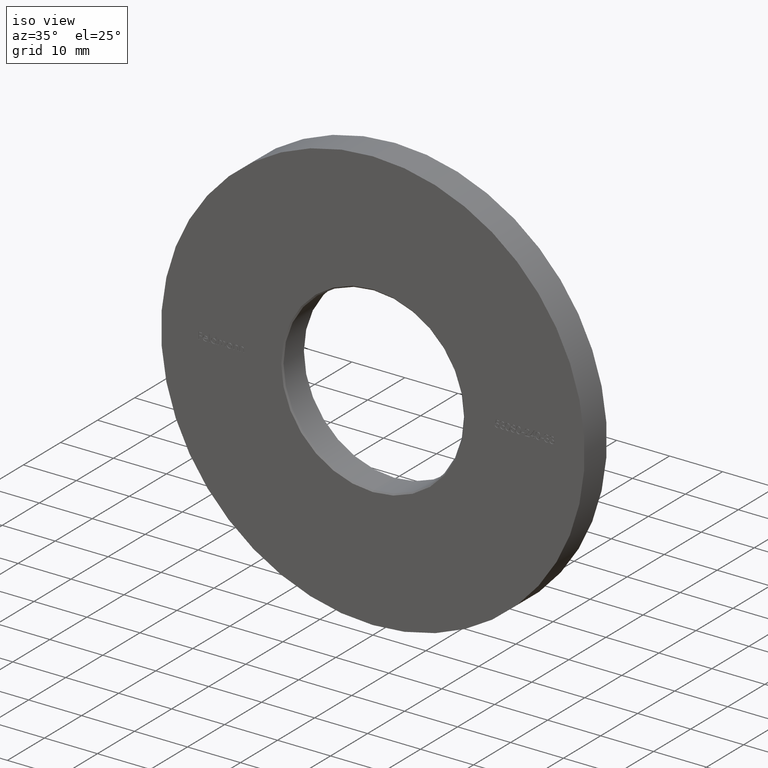
[diagram: clean part render]
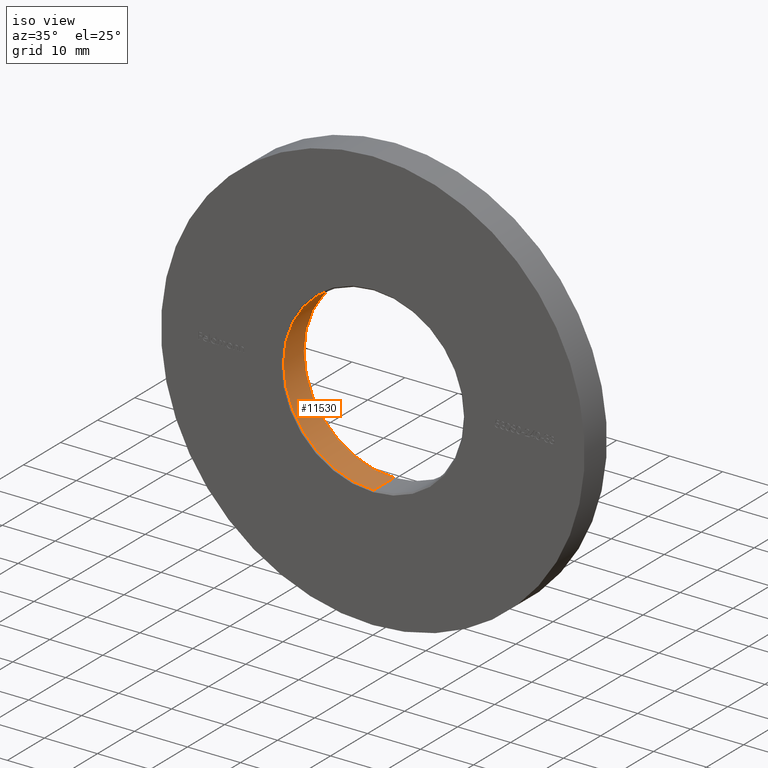
[diagram: same view with one face highlighted and labeled with its STEP entity id]
A machine part, iso view. The second image highlights one B-rep face of the part: STEP entity #11530.
In plain terms, the highlighted cylindrical surface (partial cylindrical patch) has radius 17.05 mm, axis along (-0, -1, -0).
Its self-contained STEP definition (entity closure, byte-faithful):
#291 = CARTESIAN_POINT ( 'NONE',  ( 0.000000000000000000, 5.749999999999985789, -17.05000000000000071 ) ) ;
#646 = FACE_OUTER_BOUND ( 'NONE', #708, .T. ) ;
#708 = EDGE_LOOP ( 'NONE', ( #14008, #8764, #1682, #1021 ) ) ;
#900 = DIRECTION ( 'NONE',  ( -0.000000000000000000, -1.000000000000000000, -0.000000000000000000 ) ) ;
#1021 = ORIENTED_EDGE ( 'NONE', *, *, #10857, .F. ) ;
#1257 = DIRECTION ( 'NONE',  ( -0.000000000000000000, -1.000000000000000000, -0.000000000000000000 ) ) ;
#1599 = CARTESIAN_POINT ( 'NONE',  ( 2.088022792546237353E-15, 6.000000000000000000, 17.05000000000000071 ) ) ;
#1682 = ORIENTED_EDGE ( 'NONE', *, *, #8546, .T. ) ;
#1686 = AXIS2_PLACEMENT_3D ( 'NONE', #13877, #1888, #1933 ) ;
#1832 = LINE ( 'NONE', #1599, #8197 ) ;
#1874 = LINE ( 'NONE', #6508, #9293 ) ;
#1888 = DIRECTION ( 'NONE',  ( 0.000000000000000000, 1.000000000000000000, 0.000000000000000000 ) ) ;
#1933 = DIRECTION ( 'NONE',  ( 0.000000000000000000, 0.000000000000000000, 1.000000000000000000 ) ) ;
#2507 = CIRCLE ( 'NONE', #1686, 17.05000000000000071 ) ;
#3698 = VERTEX_POINT ( 'NONE', #291 ) ;
#4155 = VERTEX_POINT ( 'NONE', #13295 ) ;
#4259 = DIRECTION ( 'NONE',  ( -0.000000000000000000, -1.000000000000000000, -0.000000000000000000 ) ) ;
#4855 = CIRCLE ( 'NONE', #13310, 17.05000000000000071 ) ;
#6508 = CARTESIAN_POINT ( 'NONE',  ( 0.000000000000000000, 6.000000000000000000, -17.05000000000000071 ) ) ;
#6629 = DIRECTION ( 'NONE',  ( -0.000000000000000000, -1.000000000000000000, -0.000000000000000000 ) ) ;
#7288 = AXIS2_PLACEMENT_3D ( 'NONE', #11958, #4259, #8291 ) ;
#8197 = VECTOR ( 'NONE', #1257, 1000.000000000000000 ) ;
#8291 = DIRECTION ( 'NONE',  ( 0.000000000000000000, 0.000000000000000000, -1.000000000000000000 ) ) ;
#8546 = EDGE_CURVE ( 'NONE', #12475, #4155, #4855, .T. ) ;
#8764 = ORIENTED_EDGE ( 'NONE', *, *, #13540, .T. ) ;
#9293 = VECTOR ( 'NONE', #6629, 1000.000000000000000 ) ;
#10857 = EDGE_CURVE ( 'NONE', #3698, #4155, #1874, .T. ) ;
#11089 = EDGE_CURVE ( 'NONE', #3698, #15636, #2507, .T. ) ;
#11530 = ADVANCED_FACE ( 'NONE', ( #646 ), #13357, .F. ) ;
#11550 = DIRECTION ( 'NONE',  ( 0.000000000000000000, 0.000000000000000000, 1.000000000000000000 ) ) ;
#11958 = CARTESIAN_POINT ( 'NONE',  ( 0.000000000000000000, 6.000000000000000000, 0.000000000000000000 ) ) ;
#12168 = CARTESIAN_POINT ( 'NONE',  ( 2.088022792546237353E-15, 5.749999999999985789, 17.05000000000000071 ) ) ;
#12475 = VERTEX_POINT ( 'NONE', #12646 ) ;
#12646 = CARTESIAN_POINT ( 'NONE',  ( 2.088022792546237353E-15, 0.2499999999999863443, 17.05000000000000071 ) ) ;
#12784 = CARTESIAN_POINT ( 'NONE',  ( 0.000000000000000000, 0.2499999999999863443, 0.000000000000000000 ) ) ;
#13295 = CARTESIAN_POINT ( 'NONE',  ( 0.000000000000000000, 0.2499999999999863443, -17.05000000000000071 ) ) ;
#13310 = AXIS2_PLACEMENT_3D ( 'NONE', #12784, #900, #11550 ) ;
#13357 = CYLINDRICAL_SURFACE ( 'NONE', #7288, 17.05000000000000071 ) ;
#13540 = EDGE_CURVE ( 'NONE', #15636, #12475, #1832, .T. ) ;
#13877 = CARTESIAN_POINT ( 'NONE',  ( 0.000000000000000000, 5.749999999999985789, 0.000000000000000000 ) ) ;
#14008 = ORIENTED_EDGE ( 'NONE', *, *, #11089, .T. ) ;
#15636 = VERTEX_POINT ( 'NONE', #12168 ) ;